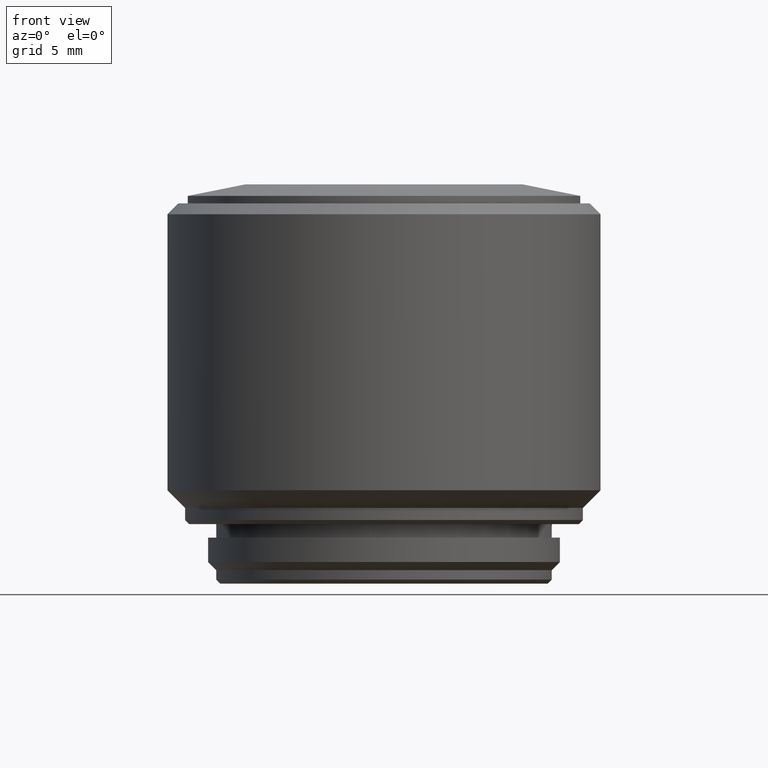
[diagram: clean part render]
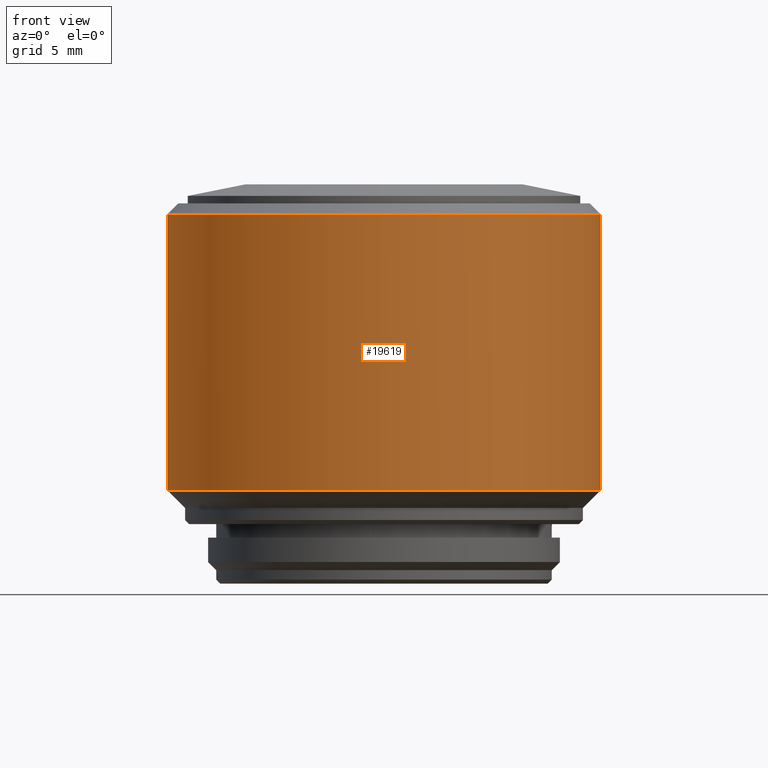
[diagram: same view with one face highlighted and labeled with its STEP entity id]
A machine part, front view. The second image highlights one B-rep face of the part: STEP entity #19619.
In plain terms, the highlighted cylindrical surface (partial cylindrical patch) has radius 16 mm, axis along (0, 0, -1).
Its self-contained STEP definition (entity closure, byte-faithful):
#27 = AXIS2_PLACEMENT_3D ( 'NONE', #5164, #20283, #3397 ) ;
#129 = VECTOR ( 'NONE', #432, 1000.000000000000000 ) ;
#432 = DIRECTION ( 'NONE',  ( 0.000000000000000000, 0.000000000000000000, -1.000000000000000000 ) ) ;
#2427 = ORIENTED_EDGE ( 'NONE', *, *, #12420, .T. ) ;
#3397 = DIRECTION ( 'NONE',  ( -1.000000000000000000, 0.000000000000000000, 0.000000000000000000 ) ) ;
#4724 = CARTESIAN_POINT ( 'NONE',  ( 0.000000000000000000, 0.000000000000000000, 27.30000000000000071 ) ) ;
#5164 = CARTESIAN_POINT ( 'NONE',  ( 0.000000000000000000, 0.000000000000000000, 29.50600000000000023 ) ) ;
#6152 = DIRECTION ( 'NONE',  ( 0.000000000000000000, 0.000000000000000000, -1.000000000000000000 ) ) ;
#6984 = ORIENTED_EDGE ( 'NONE', *, *, #9011, .T. ) ;
#7090 = ORIENTED_EDGE ( 'NONE', *, *, #10258, .T. ) ;
#7329 = CIRCLE ( 'NONE', #21181, 16.00000000000000000 ) ;
#7941 = VERTEX_POINT ( 'NONE', #13805 ) ;
#8308 = CIRCLE ( 'NONE', #12890, 16.00000000000000000 ) ;
#8376 = DIRECTION ( 'NONE',  ( -1.000000000000000000, 0.000000000000000000, 0.000000000000000000 ) ) ;
#8501 = CYLINDRICAL_SURFACE ( 'NONE', #27, 16.00000000000000000 ) ;
#9011 = EDGE_CURVE ( 'NONE', #11849, #20298, #7329, .T. ) ;
#10258 = EDGE_CURVE ( 'NONE', #20298, #16075, #10752, .T. ) ;
#10752 = LINE ( 'NONE', #15644, #129 ) ;
#11228 = EDGE_CURVE ( 'NONE', #11849, #7941, #12118, .T. ) ;
#11270 = DIRECTION ( 'NONE',  ( 1.000000000000000000, 0.000000000000000000, 0.000000000000000000 ) ) ;
#11849 = VERTEX_POINT ( 'NONE', #15510 ) ;
#12118 = LINE ( 'NONE', #14110, #19254 ) ;
#12420 = EDGE_CURVE ( 'NONE', #16075, #7941, #8308, .T. ) ;
#12890 = AXIS2_PLACEMENT_3D ( 'NONE', #16819, #15147, #8376 ) ;
#13805 = CARTESIAN_POINT ( 'NONE',  ( 15.99999999999999289, 0.000000000000000000, 6.899999999999999467 ) ) ;
#14110 = CARTESIAN_POINT ( 'NONE',  ( 16.00000000000000000, 1.959434878635765131E-15, 29.50600000000000023 ) ) ;
#15147 = DIRECTION ( 'NONE',  ( 0.000000000000000000, 0.000000000000000000, 1.000000000000000000 ) ) ;
#15205 = CARTESIAN_POINT ( 'NONE',  ( -15.99999999999998934, 0.000000000000000000, 27.30000000000000071 ) ) ;
#15510 = CARTESIAN_POINT ( 'NONE',  ( 15.99999999999998934, 1.959434878635763948E-15, 27.30000000000000071 ) ) ;
#15644 = CARTESIAN_POINT ( 'NONE',  ( -16.00000000000000000, 0.000000000000000000, 29.50600000000000023 ) ) ;
#16075 = VERTEX_POINT ( 'NONE', #20900 ) ;
#16819 = CARTESIAN_POINT ( 'NONE',  ( 0.000000000000000000, 0.000000000000000000, 6.899999999999999467 ) ) ;
#16844 = FACE_OUTER_BOUND ( 'NONE', #19257, .T. ) ;
#17699 = ORIENTED_EDGE ( 'NONE', *, *, #11228, .F. ) ;
#18896 = DIRECTION ( 'NONE',  ( 0.000000000000000000, 0.000000000000000000, -1.000000000000000000 ) ) ;
#19254 = VECTOR ( 'NONE', #18896, 1000.000000000000000 ) ;
#19257 = EDGE_LOOP ( 'NONE', ( #17699, #6984, #7090, #2427 ) ) ;
#19619 = ADVANCED_FACE ( 'NONE', ( #16844 ), #8501, .T. ) ;
#20283 = DIRECTION ( 'NONE',  ( 0.000000000000000000, 0.000000000000000000, -1.000000000000000000 ) ) ;
#20298 = VERTEX_POINT ( 'NONE', #15205 ) ;
#20900 = CARTESIAN_POINT ( 'NONE',  ( -15.99999999999999289, 1.959434878635763948E-15, 6.899999999999999467 ) ) ;
#21181 = AXIS2_PLACEMENT_3D ( 'NONE', #4724, #6152, #11270 ) ;